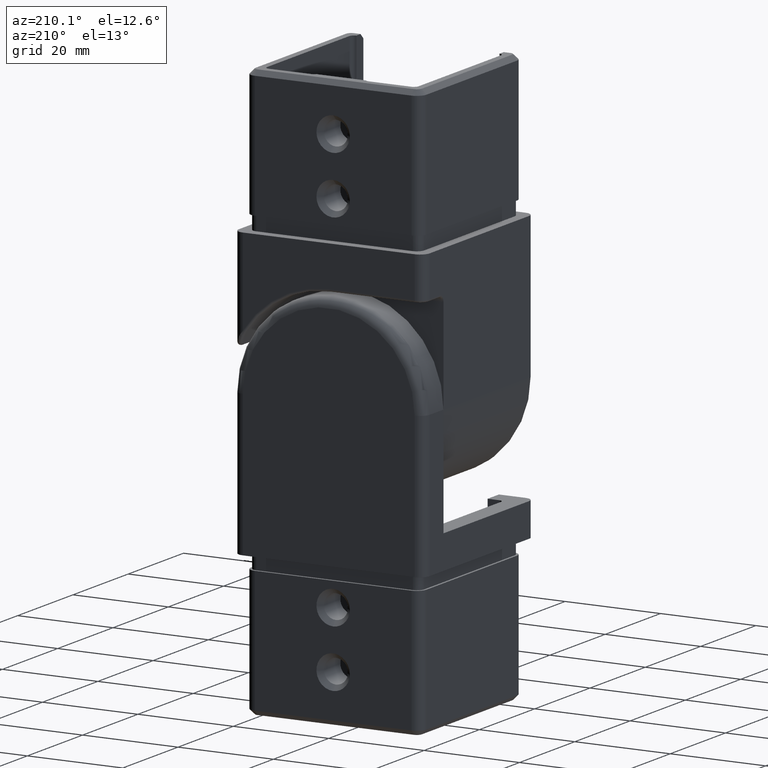
[diagram: clean part render]
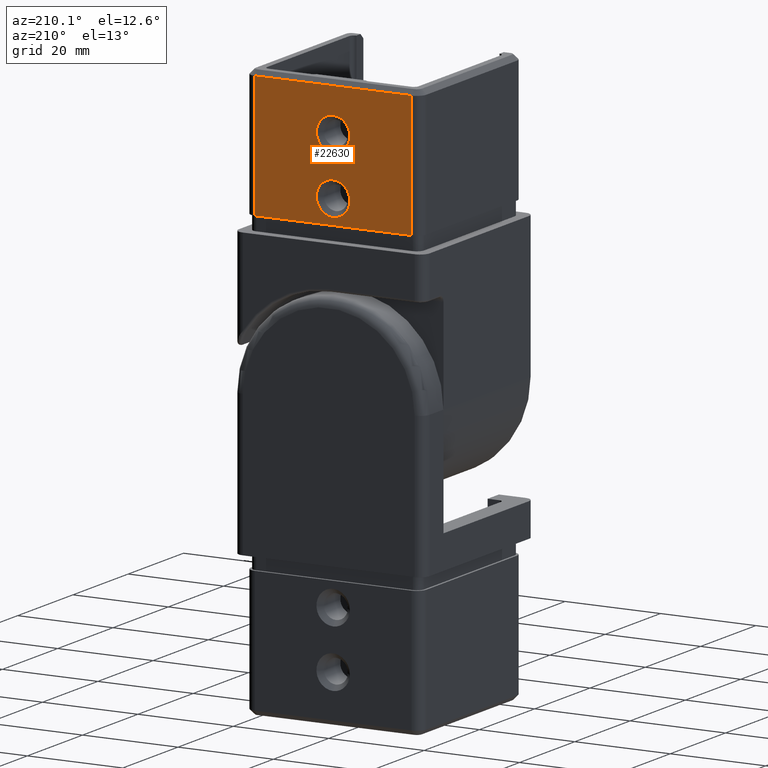
[diagram: same view with one face highlighted and labeled with its STEP entity id]
A machine part, auxiliary view. The second image highlights one B-rep face of the part: STEP entity #22630.
In plain terms, the highlighted planar face has unit normal (0, -1, 0).
Its self-contained STEP definition (entity closure, byte-faithful):
#923 = DIRECTION ( 'NONE',  ( 1.000000000000000000, 0.0000000000000000000, 0.0000000000000000000 ) ) ;
#997 = VERTEX_POINT ( 'NONE', #12442 ) ;
#1917 = CARTESIAN_POINT ( 'NONE',  ( -2.346829706179192000E-015, 18.39999999999999900, 27.00000000000000400 ) ) ;
#2210 = VECTOR ( 'NONE', #17600, 1000.000000000000000 ) ;
#3215 = EDGE_CURVE ( 'NONE', #997, #15090, #22703, .T. ) ;
#3526 = FACE_BOUND ( 'NONE', #20907, .T. ) ;
#4056 = DIRECTION ( 'NONE',  ( -0.0000000000000000000, -0.0000000000000000000, -1.000000000000000000 ) ) ;
#4371 = EDGE_CURVE ( 'NONE', #21789, #21789, #9311, .T. ) ;
#4838 = EDGE_CURVE ( 'NONE', #15325, #7114, #8332, .T. ) ;
#4932 = VECTOR ( 'NONE', #11238, 1000.000000000000000 ) ;
#5160 = AXIS2_PLACEMENT_3D ( 'NONE', #11561, #9213, #923 ) ;
#5353 = CARTESIAN_POINT ( 'NONE',  ( 3.500000000000004400, 18.39999999999999900, 27.00000000000000400 ) ) ;
#5701 = VECTOR ( 'NONE', #4056, 1000.000000000000000 ) ;
#5839 = EDGE_CURVE ( 'NONE', #20471, #20471, #7636, .T. ) ;
#7114 = VERTEX_POINT ( 'NONE', #9361 ) ;
#7222 = LINE ( 'NONE', #19499, #4932 ) ;
#7245 = CARTESIAN_POINT ( 'NONE',  ( -16.39999999999999900, 18.39999999999999900, 37.00000000000000000 ) ) ;
#7454 = CARTESIAN_POINT ( 'NONE',  ( 3.500000000000004400, 18.39999999999999900, 15.00000000000000000 ) ) ;
#7636 = CIRCLE ( 'NONE', #5160, 3.500000000000006700 ) ;
#8332 = LINE ( 'NONE', #24796, #5701 ) ;
#8513 = ORIENTED_EDGE ( 'NONE', *, *, #18775, .F. ) ;
#8612 = EDGE_LOOP ( 'NONE', ( #11511 ) ) ;
#9213 = DIRECTION ( 'NONE',  ( 1.057758217059028700E-016, -1.000000000000000000, 0.0000000000000000000 ) ) ;
#9311 = CIRCLE ( 'NONE', #23978, 3.500000000000006700 ) ;
#9361 = CARTESIAN_POINT ( 'NONE',  ( 16.40000000000001300, 18.40000000000000200, 10.00000000000000200 ) ) ;
#9777 = AXIS2_PLACEMENT_3D ( 'NONE', #18901, #12460, #21017 ) ;
#10473 = PLANE ( 'NONE',  #9777 ) ;
#11238 = DIRECTION ( 'NONE',  ( 1.000000000000000000, 1.057758217059028700E-016, 0.0000000000000000000 ) ) ;
#11511 = ORIENTED_EDGE ( 'NONE', *, *, #5839, .T. ) ;
#11561 = CARTESIAN_POINT ( 'NONE',  ( -2.346829706179192000E-015, 18.39999999999999900, 15.00000000000000000 ) ) ;
#12442 = CARTESIAN_POINT ( 'NONE',  ( -16.39999999999999900, 18.39999999999999900, 35.99999999999999300 ) ) ;
#12460 = DIRECTION ( 'NONE',  ( 1.057758217059028700E-016, -1.000000000000000000, 0.0000000000000000000 ) ) ;
#13045 = EDGE_CURVE ( 'NONE', #997, #15325, #7222, .T. ) ;
#13394 = LINE ( 'NONE', #24545, #20904 ) ;
#13842 = EDGE_LOOP ( 'NONE', ( #17657, #20374, #23544, #8513 ) ) ;
#14168 = CARTESIAN_POINT ( 'NONE',  ( -16.39999999999999100, 18.39999999999999500, 10.00000000000000200 ) ) ;
#14458 = DIRECTION ( 'NONE',  ( 1.057758217059028700E-016, -1.000000000000000000, 0.0000000000000000000 ) ) ;
#14814 = DIRECTION ( 'NONE',  ( 1.000000000000000000, 2.115516434118057200E-016, 0.0000000000000000000 ) ) ;
#15090 = VERTEX_POINT ( 'NONE', #14168 ) ;
#15325 = VERTEX_POINT ( 'NONE', #19803 ) ;
#17221 = FACE_BOUND ( 'NONE', #8612, .T. ) ;
#17538 = FACE_OUTER_BOUND ( 'NONE', #13842, .T. ) ;
#17600 = DIRECTION ( 'NONE',  ( -0.0000000000000000000, -0.0000000000000000000, -1.000000000000000000 ) ) ;
#17657 = ORIENTED_EDGE ( 'NONE', *, *, #3215, .F. ) ;
#18775 = EDGE_CURVE ( 'NONE', #15090, #7114, #13394, .T. ) ;
#18814 = DIRECTION ( 'NONE',  ( 1.000000000000000000, 0.0000000000000000000, 0.0000000000000000000 ) ) ;
#18901 = CARTESIAN_POINT ( 'NONE',  ( -16.39999999999999900, 18.39999999999999900, 37.00000000000000000 ) ) ;
#19499 = CARTESIAN_POINT ( 'NONE',  ( 16.40000000000000600, 18.40000000000000200, 35.99999999999999300 ) ) ;
#19803 = CARTESIAN_POINT ( 'NONE',  ( 16.40000000000000600, 18.40000000000000600, 35.99999999999999300 ) ) ;
#20374 = ORIENTED_EDGE ( 'NONE', *, *, #13045, .T. ) ;
#20471 = VERTEX_POINT ( 'NONE', #7454 ) ;
#20904 = VECTOR ( 'NONE', #14814, 1000.000000000000000 ) ;
#20907 = EDGE_LOOP ( 'NONE', ( #22159 ) ) ;
#21017 = DIRECTION ( 'NONE',  ( 1.000000000000000000, 1.057758217059028700E-016, 0.0000000000000000000 ) ) ;
#21789 = VERTEX_POINT ( 'NONE', #5353 ) ;
#22159 = ORIENTED_EDGE ( 'NONE', *, *, #4371, .T. ) ;
#22630 = ADVANCED_FACE ( 'NONE', ( #17221, #3526, #17538 ), #10473, .F. ) ;
#22703 = LINE ( 'NONE', #7245, #2210 ) ;
#23544 = ORIENTED_EDGE ( 'NONE', *, *, #4838, .T. ) ;
#23978 = AXIS2_PLACEMENT_3D ( 'NONE', #1917, #14458, #18814 ) ;
#24545 = CARTESIAN_POINT ( 'NONE',  ( -16.39999999999999100, 18.39999999999999500, 10.00000000000000200 ) ) ;
#24796 = CARTESIAN_POINT ( 'NONE',  ( 16.40000000000000600, 18.40000000000000600, 37.00000000000000000 ) ) ;